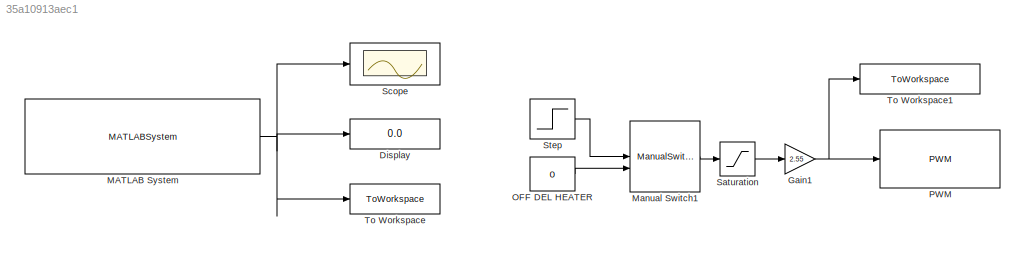
MODEL slx_35a10913aec1
KIND model
CONFIG AbsTol = auto
CONFIG EnableMultiTasking = on
CONFIG FixedStep = 1
CONFIG MaxStep = auto
CONFIG MinStep = auto
CONFIG RelTol = 1e-3
CONFIG SampleTimeConstraint = Unconstrained
CONFIG SolverName = FixedStepDiscrete
CONFIG StartTime = 0.0
CONFIG StopTime = 600
BLOCK [Display] Display
  Decimation = 1
BLOCK [Gain] Gain1
  Gain = 2.55
BLOCK [MATLABSystem] MATLAB System
  BlockParameter = uint32( 0 )
  MaskType = DHT11
  SampleTime = 1
  System = DHT11
BLOCK [ManualSwitch] Manual Switch1
BLOCK [Constant] OFF DEL HEATER
  Value = 0
BLOCK [Reference] PWM  REF=arduinolib/PWM
  SourceBlock = arduinolib/PWM
  SourceType = Arduino PWM
BLOCK [Saturate] Saturation
  LowerLimit = 0
  OutDataTypeStr = Inherit: Inherit via back propagation
  UpperLimit = 100
BLOCK [Scope] Scope
  ActiveDisplayYMaximum = 59.901982912047529
  ActiveDisplayYMinimum = 21.701677615363643
  Floating = off
  GraphicalSettings = {"Style":{"BackgroundColor":[0.12941176470588237,0.12941176470588237,0.12941176470588237],"AxesColor":[0.07058823529411765,0.07058823529411765,0.07058823529411765],"LabelsColor":[0.8509803921568627,0.8509803921568627,0.8509803921568627],"PreserveColors":false,"Visible":[true],"LineStyle":["-"],"LineWidth":[1.5],"BarWidth":[0.9],"LineColor":["auto"],"LineFaceAlpha":[1],"LineEdgeAlpha":[1],"Marker":...<+1994ch>
  LayoutDimensionsString = [1 1]
  MultipleDisplayCache = [{"MaxYLimMag":44.25,"MaxYLimReal":59.901982912047529,"MinYLimMag":26.75,"MinYLimReal":21.701677615363643,"PlotAsMagnitudePhase":false,"ShowGrid":true,"ShowLegend":false,"Title":"%<SignalLabel>","YLabel":""}]
  NumInputPorts = 1
  ScopeFrameLocation = window
  Visible = on
  WasSavedAsWebScope = on
  WindowPosition = [1.000000,1.000000,1536.000000,841.000000,]
BLOCK [Step] Step
  After = 50
  SampleTime = 1
  Time = 100
BLOCK [ToWorkspace] To Workspace
  FixptAsFi = on
  MaxDataPoints = inf
  SampleTime = -1
  Save2DSignal = 2-D array (concatenate along first dimension)
  VariableName = Temp_Data
BLOCK [ToWorkspace] To Workspace1
  MaxDataPoints = inf
  SampleTime = -1
  Save2DSignal = 2-D array (concatenate along first dimension)
  SaveFormat = Structure With Time
  VariableName = Heater_Data
NET Gain1:1 -> PWM:1, To Workspace1:1
NET MATLAB System:1 -> Display:1, Scope:1, To Workspace:1
LINE Manual Switch1:1 -> Saturation:1
LINE OFF DEL HEATER:1 -> Manual Switch1:2
LINE Saturation:1 -> Gain1:1
LINE Step:1 -> Manual Switch1:1
note: NET lines group one-source signal fan-out (src -> all destinations, sorted); 1:1 wires keep LINE
